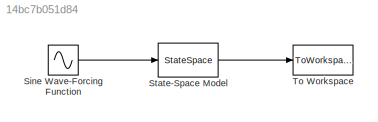
MODEL slx_14bc7b051d84
KIND model
BLOCK [Sin] Sine Wave-Forcing Function
  Amplitude = F
  Frequency = freq*2*pi
  Ports = [0, 1]
  SampleTime = 0
BLOCK [StateSpace] State-Space Model
  A = [0 1 0 0;-(k1+k2)/m1 -c1/m1 k2/m1 0;0 0 0 1;k2/m2 0 -(k3+k2)/m2 -c2/m2]
  B = [0;1/m1;0;0]
  C = [1 0 0 0;1 0 0 0;0 0 1 0;0 0 0 1]
  D = [0;0;0;0]
  X0 = [x10 v10 x20 v20]
BLOCK [ToWorkspace] To Workspace
  MaxDataPoints = inf
  Ports = [1]
  SampleTime = -1
  SaveFormat = Timeseries
  VariableName = output_output
LINE Sine Wave-Forcing Function:1 -> State-Space Model:1
LINE State-Space Model:1 -> To Workspace:1
